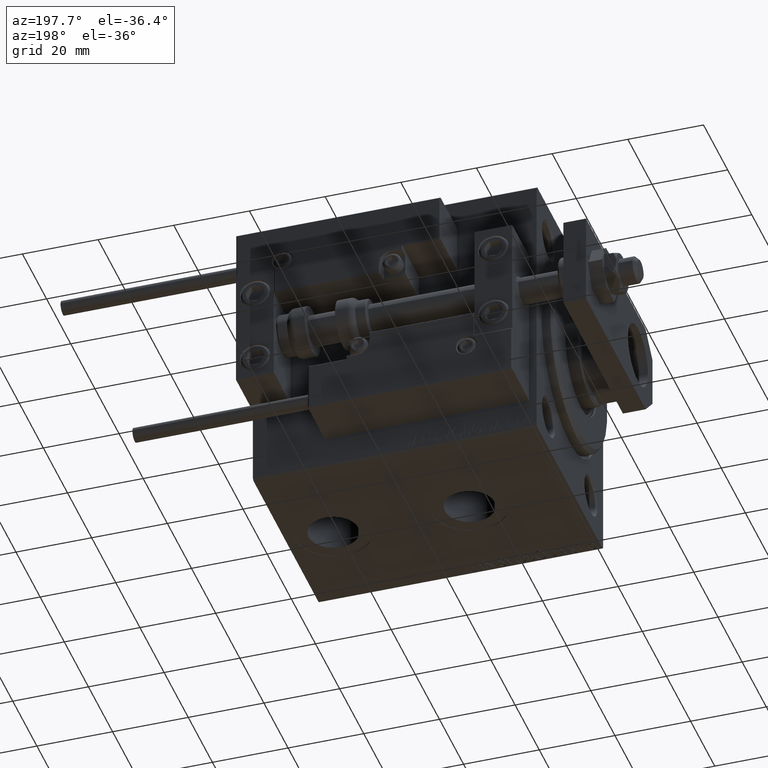
[diagram: clean part render]
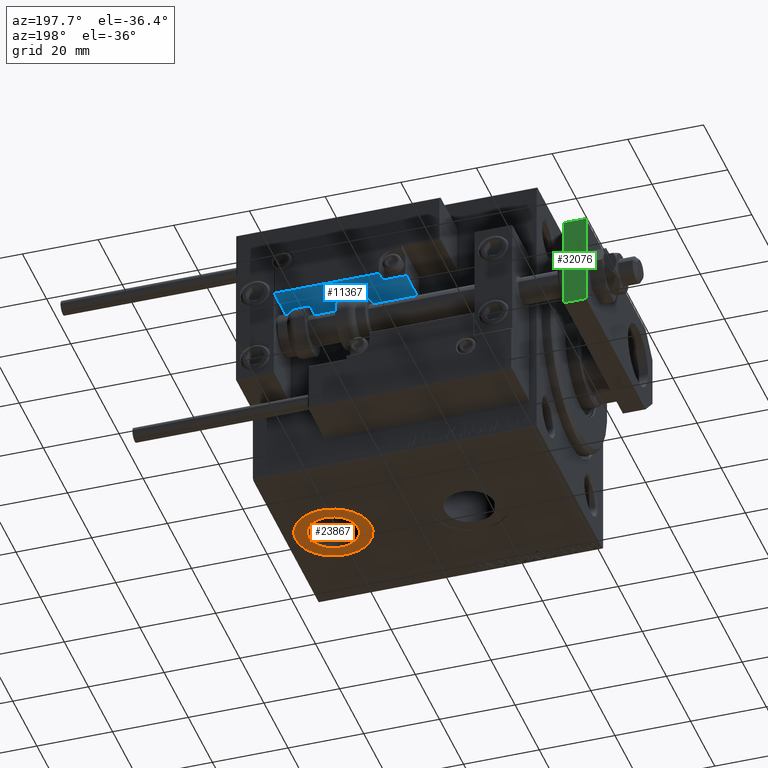
[diagram: same view with three faces highlighted in distinct colors, each labeled with its STEP entity id]
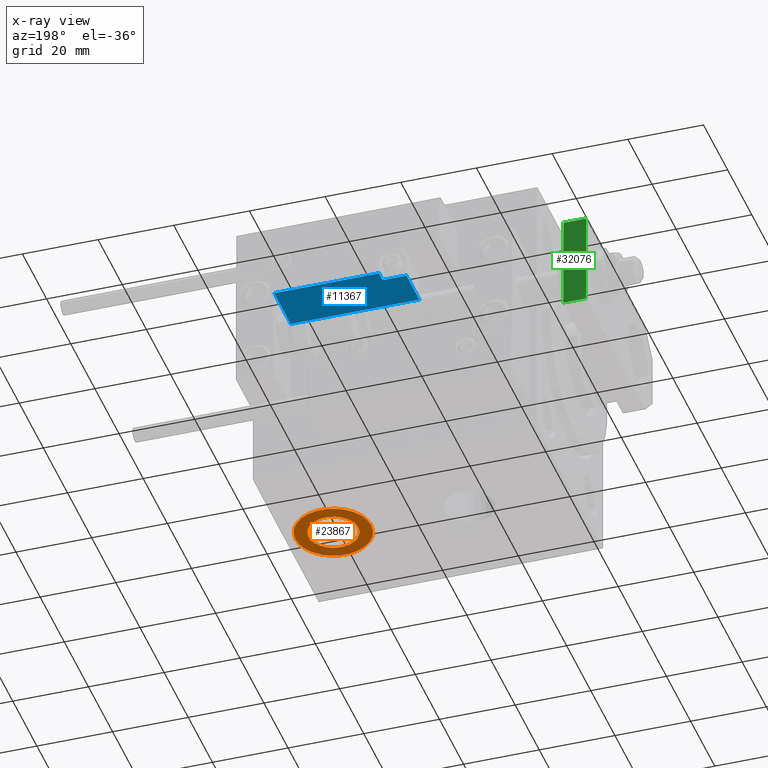
[diagram: x-ray of the same camera — body ghosted, the three highlighted faces saturated]
A machine part, auxiliary view with three faces highlighted in distinct colors.
The next image is the same camera in x-ray (body ghosted, the three faces saturated) — at least one of them is partly hidden behind the body in this view.
Their STEP definitions:

[orange] entity #23867 — the highlighted planar face has unit normal (0, 0, -1).
#129 = AXIS2_PLACEMENT_3D ( 'NONE', #36600, #992, #48528 ) ;
#531 = ORIENTED_EDGE ( 'NONE', *, *, #12435, .T. ) ;
#992 = DIRECTION ( 'NONE',  ( 0.000000000000000000, 0.000000000000000000, -1.000000000000000000 ) ) ;
#2657 = FACE_BOUND ( 'NONE', #4232, .T. ) ;
#2748 = AXIS2_PLACEMENT_3D ( 'NONE', #48612, #36932, #49376 ) ;
#2861 = AXIS2_PLACEMENT_3D ( 'NONE', #12687, #8529, #8790 ) ;
#4232 = EDGE_LOOP ( 'NONE', ( #20787, #39849 ) ) ;
#4534 = CIRCLE ( 'NONE', #2861, 10.00000000000000178 ) ;
#5765 = EDGE_CURVE ( 'NONE', #10541, #16706, #26540, .T. ) ;
#6380 = CARTESIAN_POINT ( 'NONE',  ( 55.91999999999998749, -7.523326685254106813E-15, -37.39999999999999858 ) ) ;
#7619 = CIRCLE ( 'NONE', #129, 10.00000000000000178 ) ;
#8529 = DIRECTION ( 'NONE',  ( 0.000000000000000000, 0.000000000000000000, -1.000000000000000000 ) ) ;
#8790 = DIRECTION ( 'NONE',  ( -1.000000000000000000, 0.000000000000000000, 0.000000000000000000 ) ) ;
#10541 = VERTEX_POINT ( 'NONE', #6380 ) ;
#12435 = EDGE_CURVE ( 'NONE', #24141, #44610, #7619, .T. ) ;
#12685 = CARTESIAN_POINT ( 'NONE',  ( 72.50000000000000000, -6.298679886106752964E-15, -37.39999999999999858 ) ) ;
#12687 = CARTESIAN_POINT ( 'NONE',  ( 62.49999999999999289, -7.523326685254106813E-15, -37.39999999999999858 ) ) ;
#12897 = CARTESIAN_POINT ( 'NONE',  ( 52.49999999999999289, -7.523326685254106813E-15, -37.39999999999999858 ) ) ;
#16706 = VERTEX_POINT ( 'NONE', #22192 ) ;
#17554 = CARTESIAN_POINT ( 'NONE',  ( 62.49999999999999289, -7.523326685254106813E-15, -37.39999999999999858 ) ) ;
#18764 = PLANE ( 'NONE',  #23672 ) ;
#19015 = DIRECTION ( 'NONE',  ( 0.000000000000000000, 0.000000000000000000, -1.000000000000000000 ) ) ;
#20787 = ORIENTED_EDGE ( 'NONE', *, *, #5765, .F. ) ;
#22139 = CARTESIAN_POINT ( 'NONE',  ( 62.49999999999999289, -7.523326685254106813E-15, -37.39999999999999858 ) ) ;
#22192 = CARTESIAN_POINT ( 'NONE',  ( 69.07999999999999829, -6.717509091415148559E-15, -37.39999999999999858 ) ) ;
#23209 = EDGE_CURVE ( 'NONE', #44610, #24141, #4534, .T. ) ;
#23672 = AXIS2_PLACEMENT_3D ( 'NONE', #22139, #19015, #37999 ) ;
#23867 = ADVANCED_FACE ( 'NONE', ( #2657, #41892 ), #18764, .T. ) ;
#24141 = VERTEX_POINT ( 'NONE', #12897 ) ;
#25146 = CIRCLE ( 'NONE', #2748, 6.580000000000002736 ) ;
#26540 = CIRCLE ( 'NONE', #45630, 6.580000000000002736 ) ;
#32874 = DIRECTION ( 'NONE',  ( 0.000000000000000000, 0.000000000000000000, -1.000000000000000000 ) ) ;
#36600 = CARTESIAN_POINT ( 'NONE',  ( 62.49999999999999289, -7.523326685254106813E-15, -37.39999999999999858 ) ) ;
#36932 = DIRECTION ( 'NONE',  ( 0.000000000000000000, 0.000000000000000000, -1.000000000000000000 ) ) ;
#37042 = EDGE_CURVE ( 'NONE', #16706, #10541, #25146, .T. ) ;
#37296 = DIRECTION ( 'NONE',  ( -1.000000000000000000, 0.000000000000000000, 0.000000000000000000 ) ) ;
#37999 = DIRECTION ( 'NONE',  ( -1.000000000000000000, 0.000000000000000000, -0.000000000000000000 ) ) ;
#39849 = ORIENTED_EDGE ( 'NONE', *, *, #37042, .F. ) ;
#40725 = ORIENTED_EDGE ( 'NONE', *, *, #23209, .T. ) ;
#41892 = FACE_OUTER_BOUND ( 'NONE', #46760, .T. ) ;
#44610 = VERTEX_POINT ( 'NONE', #12685 ) ;
#45630 = AXIS2_PLACEMENT_3D ( 'NONE', #17554, #32874, #37296 ) ;
#46760 = EDGE_LOOP ( 'NONE', ( #531, #40725 ) ) ;
#48528 = DIRECTION ( 'NONE',  ( -1.000000000000000000, 0.000000000000000000, 0.000000000000000000 ) ) ;
#48612 = CARTESIAN_POINT ( 'NONE',  ( 62.49999999999999289, -7.523326685254106813E-15, -37.39999999999999858 ) ) ;
#49376 = DIRECTION ( 'NONE',  ( -1.000000000000000000, 0.000000000000000000, 0.000000000000000000 ) ) ;

[blue] entity #11367 — the highlighted planar face has unit normal (-0, 0, 1).
#231 = CIRCLE ( 'NONE', #12703, 0.5999999999999998668 ) ;
#321 = CARTESIAN_POINT ( 'NONE',  ( 11.29999999999999893, 3.252606517456513302E-15, 11.29999999999999893 ) ) ;
#1623 = EDGE_CURVE ( 'NONE', #36487, #17284, #23262, .T. ) ;
#2373 = CARTESIAN_POINT ( 'NONE',  ( 16.99999999999999289, 3.252606517456513302E-15, 14.00000000000000000 ) ) ;
#3036 = VECTOR ( 'NONE', #14081, 1000.000000000000000 ) ;
#3480 = CARTESIAN_POINT ( 'NONE',  ( 16.99999999999999289, 3.252606517456513302E-15, 10.69999999999999929 ) ) ;
#3747 = CARTESIAN_POINT ( 'NONE',  ( -16.99999999999999289, 3.252606517456513302E-15, 13.70000000000000107 ) ) ;
#4184 = DIRECTION ( 'NONE',  ( 0.000000000000000000, 1.000000000000000000, 0.000000000000000000 ) ) ;
#4573 = CARTESIAN_POINT ( 'NONE',  ( -16.99999999999999289, 3.252606517456513302E-15, 0.000000000000000000 ) ) ;
#4726 = VERTEX_POINT ( 'NONE', #4573 ) ;
#4905 = ORIENTED_EDGE ( 'NONE', *, *, #48606, .F. ) ;
#5352 = ORIENTED_EDGE ( 'NONE', *, *, #17765, .T. ) ;
#5650 = DIRECTION ( 'NONE',  ( -1.000000000000000000, 0.000000000000000000, -0.000000000000000000 ) ) ;
#7056 = FACE_OUTER_BOUND ( 'NONE', #47681, .T. ) ;
#11104 = VECTOR ( 'NONE', #5650, 1000.000000000000000 ) ;
#11367 = ADVANCED_FACE ( 'NONE', ( #7056 ), #22905, .F. ) ;
#11794 = CARTESIAN_POINT ( 'NONE',  ( -16.99999999999999289, 3.252606517456513302E-15, 0.000000000000000000 ) ) ;
#12284 = DIRECTION ( 'NONE',  ( -0.000000000000000000, -1.000000000000000000, -0.000000000000000000 ) ) ;
#12703 = AXIS2_PLACEMENT_3D ( 'NONE', #321, #12284, #12791 ) ;
#12791 = DIRECTION ( 'NONE',  ( 0.000000000000000000, 0.000000000000000000, 1.000000000000000000 ) ) ;
#14081 = DIRECTION ( 'NONE',  ( -0.000000000000000000, -0.000000000000000000, -1.000000000000000000 ) ) ;
#14417 = EDGE_CURVE ( 'NONE', #17851, #4726, #26186, .T. ) ;
#15374 = EDGE_CURVE ( 'NONE', #36487, #37145, #231, .T. ) ;
#16374 = VECTOR ( 'NONE', #49776, 1000.000000000000000 ) ;
#17284 = VERTEX_POINT ( 'NONE', #28856 ) ;
#17446 = CARTESIAN_POINT ( 'NONE',  ( 11.29999999999999893, 3.252606517456513302E-15, 10.69999999999999929 ) ) ;
#17765 = EDGE_CURVE ( 'NONE', #23771, #37145, #48524, .T. ) ;
#17851 = VERTEX_POINT ( 'NONE', #3747 ) ;
#20027 = CARTESIAN_POINT ( 'NONE',  ( -16.99999999999999289, 3.252606517456513302E-15, 14.00000000000000000 ) ) ;
#22493 = CARTESIAN_POINT ( 'NONE',  ( 10.70000000000000107, 3.252606517456513302E-15, 14.00000000000000000 ) ) ;
#22905 = PLANE ( 'NONE',  #25823 ) ;
#23262 = LINE ( 'NONE', #22493, #46938 ) ;
#23736 = EDGE_CURVE ( 'NONE', #4726, #24846, #49978, .T. ) ;
#23771 = VERTEX_POINT ( 'NONE', #3480 ) ;
#24846 = VERTEX_POINT ( 'NONE', #41886 ) ;
#25823 = AXIS2_PLACEMENT_3D ( 'NONE', #20027, #4184, #38750 ) ;
#26186 = LINE ( 'NONE', #29321, #28425 ) ;
#26620 = CARTESIAN_POINT ( 'NONE',  ( 11.00000000000000000, 3.252606517456513302E-15, 10.69999999999999929 ) ) ;
#28425 = VECTOR ( 'NONE', #38137, 1000.000000000000000 ) ;
#28514 = ORIENTED_EDGE ( 'NONE', *, *, #23736, .T. ) ;
#28856 = CARTESIAN_POINT ( 'NONE',  ( 10.70000000000000107, 3.252606517456513302E-15, 13.70000000000000107 ) ) ;
#29230 = EDGE_CURVE ( 'NONE', #17284, #17851, #38347, .T. ) ;
#29321 = CARTESIAN_POINT ( 'NONE',  ( -16.99999999999999289, 3.252606517456513302E-15, 14.00000000000000000 ) ) ;
#30788 = CARTESIAN_POINT ( 'NONE',  ( 10.70000000000000107, 3.252606517456513302E-15, 11.29999999999999893 ) ) ;
#33203 = ORIENTED_EDGE ( 'NONE', *, *, #1623, .T. ) ;
#33934 = CARTESIAN_POINT ( 'NONE',  ( -16.99999999999999289, 3.252606517456513302E-15, 13.70000000000000107 ) ) ;
#34313 = LINE ( 'NONE', #2373, #3036 ) ;
#34440 = DIRECTION ( 'NONE',  ( 0.000000000000000000, -0.000000000000000000, 1.000000000000000000 ) ) ;
#35957 = DIRECTION ( 'NONE',  ( 1.000000000000000000, 0.000000000000000000, 0.000000000000000000 ) ) ;
#36099 = VECTOR ( 'NONE', #35957, 1000.000000000000000 ) ;
#36370 = ORIENTED_EDGE ( 'NONE', *, *, #14417, .T. ) ;
#36487 = VERTEX_POINT ( 'NONE', #30788 ) ;
#37145 = VERTEX_POINT ( 'NONE', #17446 ) ;
#38137 = DIRECTION ( 'NONE',  ( -0.000000000000000000, -0.000000000000000000, -1.000000000000000000 ) ) ;
#38347 = LINE ( 'NONE', #33934, #16374 ) ;
#38750 = DIRECTION ( 'NONE',  ( 0.000000000000000000, -0.000000000000000000, 1.000000000000000000 ) ) ;
#39157 = ORIENTED_EDGE ( 'NONE', *, *, #15374, .F. ) ;
#40711 = ORIENTED_EDGE ( 'NONE', *, *, #29230, .T. ) ;
#41886 = CARTESIAN_POINT ( 'NONE',  ( 16.99999999999999289, 3.252606517456513302E-15, 0.000000000000000000 ) ) ;
#46938 = VECTOR ( 'NONE', #34440, 1000.000000000000000 ) ;
#47681 = EDGE_LOOP ( 'NONE', ( #4905, #5352, #39157, #33203, #40711, #36370, #28514 ) ) ;
#48524 = LINE ( 'NONE', #26620, #11104 ) ;
#48606 = EDGE_CURVE ( 'NONE', #23771, #24846, #34313, .T. ) ;
#49776 = DIRECTION ( 'NONE',  ( -1.000000000000000000, 0.000000000000000000, -0.000000000000000000 ) ) ;
#49978 = LINE ( 'NONE', #11794, #36099 ) ;

[green] entity #32076 — the highlighted planar face has unit normal (0, -1, 0).
#1274 = CARTESIAN_POINT ( 'NONE',  ( 12.50000000000000000, 55.00000000000000000, 6.000000000000000000 ) ) ;
#3026 = CARTESIAN_POINT ( 'NONE',  ( 12.50000000000000000, 55.00000000000000000, 0.000000000000000000 ) ) ;
#6858 = LINE ( 'NONE', #39592, #13627 ) ;
#7446 = EDGE_CURVE ( 'NONE', #28019, #40828, #49814, .T. ) ;
#7609 = VERTEX_POINT ( 'NONE', #19420 ) ;
#8251 = DIRECTION ( 'NONE',  ( 0.000000000000000000, -1.000000000000000000, 0.000000000000000000 ) ) ;
#8504 = CARTESIAN_POINT ( 'NONE',  ( 12.50000000000000000, 55.00000000000000000, 6.000000000000000000 ) ) ;
#9404 = ORIENTED_EDGE ( 'NONE', *, *, #7446, .F. ) ;
#10353 = CARTESIAN_POINT ( 'NONE',  ( 12.50000000000000000, 55.00000000000000000, 6.000000000000000000 ) ) ;
#13627 = VECTOR ( 'NONE', #35180, 1000.000000000000000 ) ;
#15396 = ORIENTED_EDGE ( 'NONE', *, *, #16945, .F. ) ;
#16945 = EDGE_CURVE ( 'NONE', #40828, #7609, #6858, .T. ) ;
#19420 = CARTESIAN_POINT ( 'NONE',  ( -12.49999999999999822, 55.00000000000000000, 0.000000000000000000 ) ) ;
#22926 = VECTOR ( 'NONE', #29596, 1000.000000000000000 ) ;
#23588 = PLANE ( 'NONE',  #49875 ) ;
#24351 = DIRECTION ( 'NONE',  ( 0.000000000000000000, -0.000000000000000000, -1.000000000000000000 ) ) ;
#25931 = DIRECTION ( 'NONE',  ( -1.000000000000000000, 0.000000000000000000, 0.000000000000000000 ) ) ;
#28019 = VERTEX_POINT ( 'NONE', #1274 ) ;
#28158 = CARTESIAN_POINT ( 'NONE',  ( -12.49999999999999822, 55.00000000000000000, 6.000000000000000000 ) ) ;
#28175 = VECTOR ( 'NONE', #25931, 1000.000000000000000 ) ;
#29596 = DIRECTION ( 'NONE',  ( -0.000000000000000000, -0.000000000000000000, -1.000000000000000000 ) ) ;
#32076 = ADVANCED_FACE ( 'NONE', ( #39946 ), #23588, .F. ) ;
#32104 = DIRECTION ( 'NONE',  ( -1.000000000000000000, 0.000000000000000000, 0.000000000000000000 ) ) ;
#35180 = DIRECTION ( 'NONE',  ( -0.000000000000000000, -0.000000000000000000, -1.000000000000000000 ) ) ;
#38800 = ORIENTED_EDGE ( 'NONE', *, *, #48887, .T. ) ;
#39242 = VECTOR ( 'NONE', #32104, 1000.000000000000000 ) ;
#39446 = EDGE_CURVE ( 'NONE', #40136, #7609, #48959, .T. ) ;
#39592 = CARTESIAN_POINT ( 'NONE',  ( -12.49999999999999822, 55.00000000000000000, 6.000000000000000000 ) ) ;
#39946 = FACE_OUTER_BOUND ( 'NONE', #46188, .T. ) ;
#40136 = VERTEX_POINT ( 'NONE', #3026 ) ;
#40416 = CARTESIAN_POINT ( 'NONE',  ( 12.50000000000000000, 55.00000000000000000, 0.000000000000000000 ) ) ;
#40828 = VERTEX_POINT ( 'NONE', #28158 ) ;
#42322 = ORIENTED_EDGE ( 'NONE', *, *, #39446, .T. ) ;
#45442 = LINE ( 'NONE', #49327, #22926 ) ;
#46188 = EDGE_LOOP ( 'NONE', ( #42322, #15396, #9404, #38800 ) ) ;
#48887 = EDGE_CURVE ( 'NONE', #28019, #40136, #45442, .T. ) ;
#48959 = LINE ( 'NONE', #40416, #39242 ) ;
#49327 = CARTESIAN_POINT ( 'NONE',  ( 12.50000000000000000, 55.00000000000000000, 6.000000000000000000 ) ) ;
#49814 = LINE ( 'NONE', #10353, #28175 ) ;
#49875 = AXIS2_PLACEMENT_3D ( 'NONE', #8504, #8251, #24351 ) ;